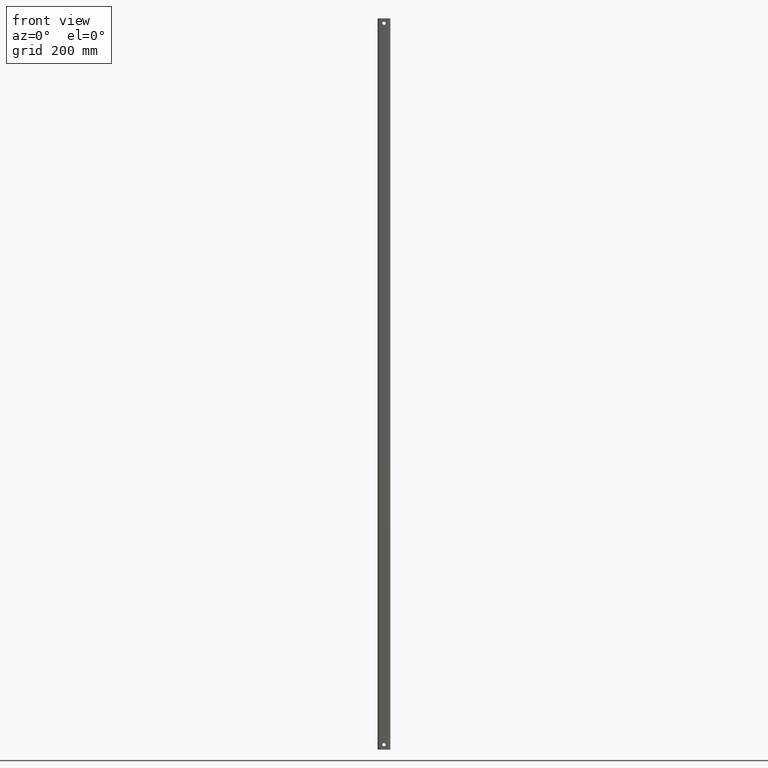
[diagram: clean part render]
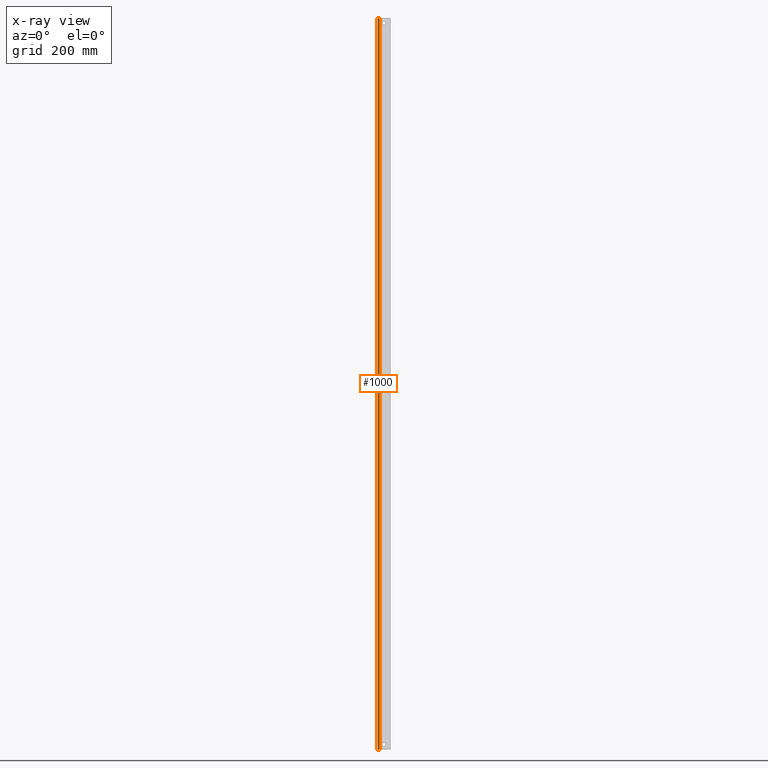
[diagram: x-ray — body ghosted, one internal face saturated and labeled with its STEP entity id]
A machine part, front view, then the same camera in x-ray: the body is ghosted and one INTERNAL B-rep face — a face not visible from any outside direction — is saturated and labeled: STEP entity #1000.
In plain terms, the highlighted cylindrical surface (edge-blend (fillet) strip) has radius 4 mm, axis along (0, -0, 1).
Its self-contained STEP definition (entity closure, byte-faithful):
#35=LINE('',#1539,#123);
#72=LINE('',#1669,#160);
#123=VECTOR('',#1215,1000.);
#160=VECTOR('',#1350,1000.);
#208=CYLINDRICAL_SURFACE('',#1110,3.99999999999992);
#368=ORIENTED_EDGE('',*,*,#604,.T.);
#369=ORIENTED_EDGE('',*,*,#541,.T.);
#370=ORIENTED_EDGE('',*,*,#605,.F.);
#371=ORIENTED_EDGE('',*,*,#606,.F.);
#541=EDGE_CURVE('',#683,#685,#35,.T.);
#604=EDGE_CURVE('',#728,#683,#792,.T.);
#605=EDGE_CURVE('',#729,#685,#793,.T.);
#606=EDGE_CURVE('',#728,#729,#72,.F.);
#683=VERTEX_POINT('',#1534);
#685=VERTEX_POINT('',#1538);
#728=VERTEX_POINT('',#1666);
#729=VERTEX_POINT('',#1668);
#792=CIRCLE('',#1111,3.99999999999992);
#793=CIRCLE('',#1112,3.99999999999992);
#846=EDGE_LOOP('',(#368,#369,#370,#371));
#914=FACE_BOUND('',#846,.T.);
#1000=ADVANCED_FACE('',(#914),#208,.T.);
#1110=AXIS2_PLACEMENT_3D('',#1664,#1344,#1345);
#1111=AXIS2_PLACEMENT_3D('',#1665,#1346,#1347);
#1112=AXIS2_PLACEMENT_3D('',#1667,#1348,#1349);
#1215=DIRECTION('',(3.32185076179637E-17,-1.66533453693773E-16,1.));
#1344=DIRECTION('',(3.32185076179637E-17,-1.66533453693773E-16,1.));
#1345=DIRECTION('',(0.,-1.,-1.66533453693773E-16));
#1346=DIRECTION('',(-8.93686180177302E-17,-1.66533453693773E-16,1.));
#1347=DIRECTION('',(0.,-1.,-1.66533453693773E-16));
#1348=DIRECTION('',(-8.93686180177302E-17,-1.66533453693773E-16,1.));
#1349=DIRECTION('',(0.,-1.,-1.66533453693773E-16));
#1350=DIRECTION('',(-3.32185076179637E-17,1.66533453693773E-16,-1.));
#1534=CARTESIAN_POINT('',(-9.,-29.9999999999996,-750.));
#1538=CARTESIAN_POINT('',(-9.00000000000002,-30.0000000000002,750.));
#1539=CARTESIAN_POINT('',(-9.00000000000002,-30.0000000000002,-3.42028056393259E-15));
#1664=CARTESIAN_POINT('',(-9.00000000000002,-26.0000000000003,-2.75414674915752E-15));
#1665=CARTESIAN_POINT('',(-9.,-25.9999999999997,-750.));
#1666=CARTESIAN_POINT('',(-12.9999999999999,-25.9999999999999,-750.));
#1667=CARTESIAN_POINT('',(-9.00000000000002,-26.0000000000003,750.));
#1668=CARTESIAN_POINT('',(-12.9999999999999,-26.0000000000003,750.));
#1669=CARTESIAN_POINT('',(-12.9999999999999,-26.0000000000003,-2.62127271868567E-15));